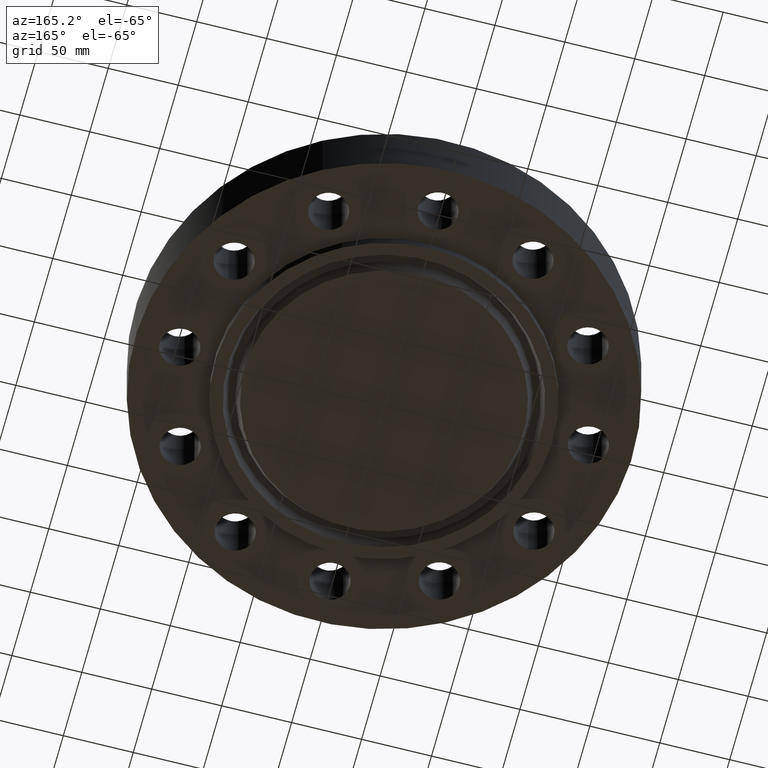
[diagram: clean part render]
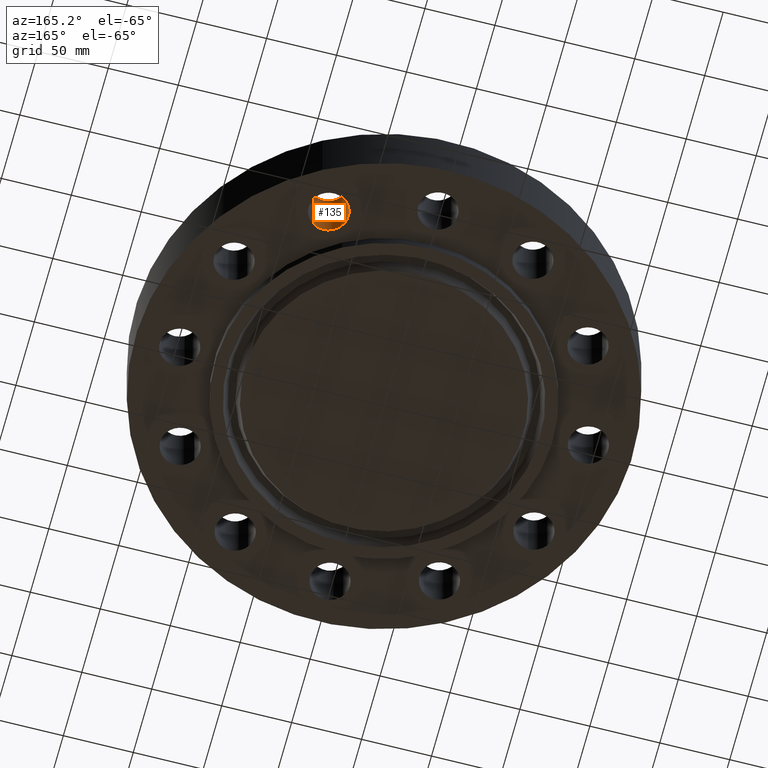
[diagram: same view with one face highlighted and labeled with its STEP entity id]
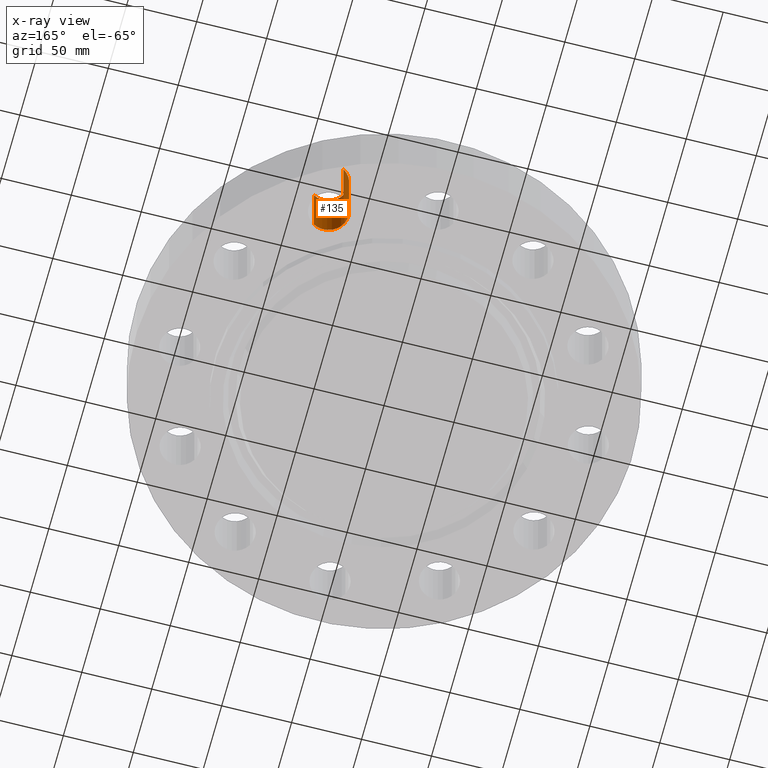
[diagram: x-ray of the same camera — body ghosted, the highlighted face saturated]
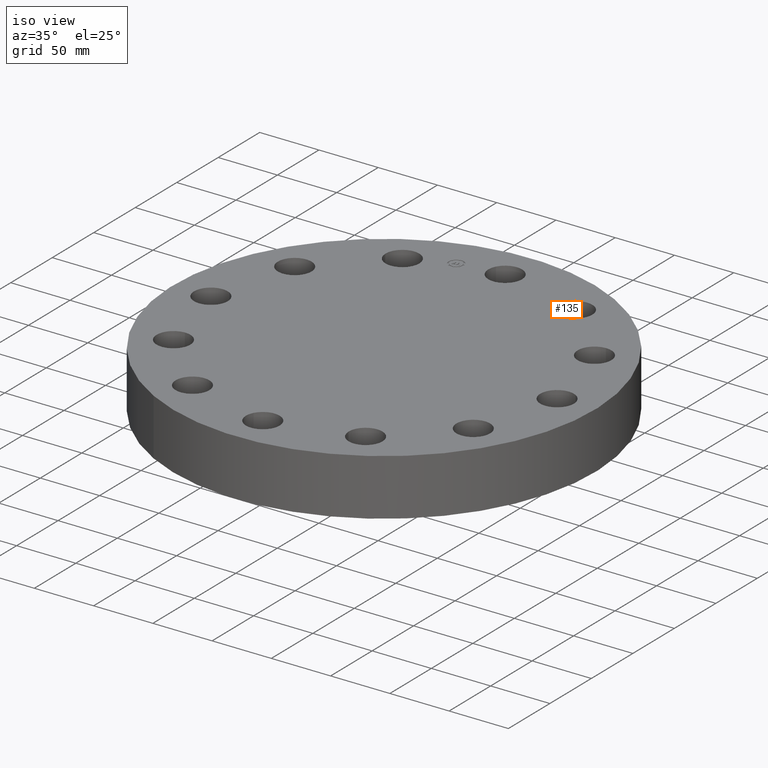
[diagram: same view with one face highlighted and labeled with its STEP entity id]
A machine part, auxiliary view. The second image highlights one B-rep face of the part: STEP entity #135.
The next image is the same camera in x-ray: the body ghosted, the highlighted face saturated — about 0% of this face is hidden behind the body in this view.
A second angle (iso view) of the same face is appended — the face is thin or edge-on in the first view.
In plain terms, the highlighted cylindrical surface (edge-blend (fillet) strip) has radius 14.224 mm, axis along (0, -0, -1).
Its self-contained STEP definition (entity closure, byte-faithful):
#99=AXIS2_PLACEMENT_3D('Cylinder Axis2P3D',#96,#97,#98) ;
#112=AXIS2_PLACEMENT_3D('Circle Axis2P3D',#110,#111,$) ;
#126=AXIS2_PLACEMENT_3D('Circle Axis2P3D',#124,#125,$) ;
#96=CARTESIAN_POINT('Axis2P3D Location',(2.87500000001,4.97964607178,1.87606299213)) ;
#101=CARTESIAN_POINT('Line Origine',(3.16636577301,4.50141392488,0.940000000004)) ;
#105=CARTESIAN_POINT('Vertex',(3.16636577301,4.50141392488,0.)) ;
#107=CARTESIAN_POINT('Vertex',(3.16636577301,4.50141392488,1.88000000001)) ;
#110=CARTESIAN_POINT('Axis2P3D Location',(2.87500000001,4.97964607178,0.)) ;
#114=CARTESIAN_POINT('Vertex',(2.58363422701,5.45787821868,0.)) ;
#117=CARTESIAN_POINT('Line Origine',(2.58363422701,5.45787821868,0.940000000004)) ;
#121=CARTESIAN_POINT('Vertex',(2.58363422701,5.45787821868,1.88000000001)) ;
#124=CARTESIAN_POINT('Axis2P3D Location',(2.87500000001,4.97964607178,1.88000000001)) ;
#97=DIRECTION('Axis2P3D Direction',(0.,-0.,-0.0393700787402)) ;
#98=DIRECTION('Axis2P3D XDirection',(-0.0204840954021,0.0336214951417,-0.)) ;
#102=DIRECTION('Vector Direction',(0.,0.,-0.0393700787402)) ;
#111=DIRECTION('Axis2P3D Direction',(0.,-0.,-0.0393700787402)) ;
#118=DIRECTION('Vector Direction',(0.,0.,-0.0393700787402)) ;
#125=DIRECTION('Axis2P3D Direction',(0.,-0.,-0.0393700787402)) ;
#103=VECTOR('Line Direction',#102,0.0393700787402) ;
#119=VECTOR('Line Direction',#118,0.0393700787402) ;
#130=ORIENTED_EDGE('',*,*,#109,.F.) ;
#131=ORIENTED_EDGE('',*,*,#116,.T.) ;
#132=ORIENTED_EDGE('',*,*,#123,.T.) ;
#133=ORIENTED_EDGE('',*,*,#128,.F.) ;
#135=ADVANCED_FACE('PartBody',(#134),#100,.F.) ;
#113=CIRCLE('generated circle',#112,0.560000000002) ;
#127=CIRCLE('generated circle',#126,0.560000000002) ;
#100=CYLINDRICAL_SURFACE('generated cylinder',#99,0.560000000002) ;
#109=EDGE_CURVE('',#106,#108,#104,.F.) ;
#116=EDGE_CURVE('',#106,#115,#113,.T.) ;
#123=EDGE_CURVE('',#115,#122,#120,.F.) ;
#128=EDGE_CURVE('',#108,#122,#127,.T.) ;
#129=EDGE_LOOP('',(#130,#131,#132,#133)) ;
#134=FACE_OUTER_BOUND('',#129,.T.) ;
#104=LINE('Line',#101,#103) ;
#120=LINE('Line',#117,#119) ;
#106=VERTEX_POINT('',#105) ;
#108=VERTEX_POINT('',#107) ;
#115=VERTEX_POINT('',#114) ;
#122=VERTEX_POINT('',#121) ;